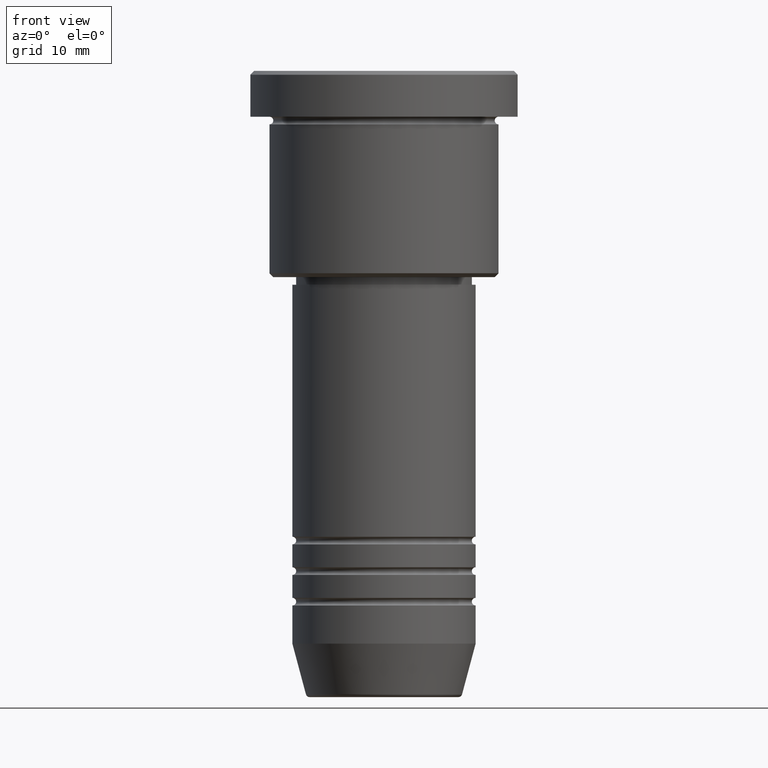
[diagram: clean part render]
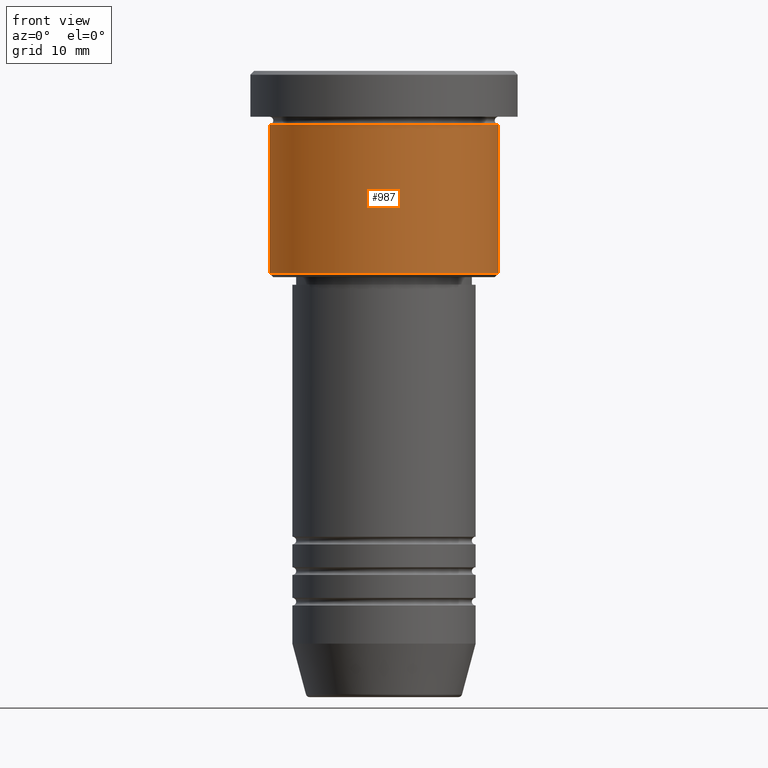
[diagram: same view with one face highlighted and labeled with its STEP entity id]
A machine part, front view. The second image highlights one B-rep face of the part: STEP entity #987.
In plain terms, the highlighted cylindrical surface (partial cylindrical patch) has radius 15 mm, axis along (-0, -0, 1).
Its self-contained STEP definition (entity closure, byte-faithful):
#23 = EDGE_CURVE ( 'NONE', #606, #525, #1027, .T. ) ;
#55 = DIRECTION ( 'NONE',  ( -0.000000000000000000, -0.000000000000000000, 1.000000000000000000 ) ) ;
#71 = DIRECTION ( 'NONE',  ( -0.000000000000000000, -0.000000000000000000, 1.000000000000000000 ) ) ;
#185 = ORIENTED_EDGE ( 'NONE', *, *, #760, .F. ) ;
#226 = VERTEX_POINT ( 'NONE', #449 ) ;
#252 = VECTOR ( 'NONE', #401, 1000.000000000000000 ) ;
#310 = CARTESIAN_POINT ( 'NONE',  ( -15.00000000000000000, 1.836970198721029589E-15, -26.50000000000002132 ) ) ;
#356 = ORIENTED_EDGE ( 'NONE', *, *, #1130, .T. ) ;
#363 = CIRCLE ( 'NONE', #841, 15.00000000000000000 ) ;
#389 = VECTOR ( 'NONE', #71, 1000.000000000000000 ) ;
#401 = DIRECTION ( 'NONE',  ( -0.000000000000000000, -0.000000000000000000, 1.000000000000000000 ) ) ;
#408 = CYLINDRICAL_SURFACE ( 'NONE', #569, 15.00000000000000000 ) ;
#439 = DIRECTION ( 'NONE',  ( -0.000000000000000000, -0.000000000000000000, 1.000000000000000000 ) ) ;
#443 = LINE ( 'NONE', #467, #389 ) ;
#449 = CARTESIAN_POINT ( 'NONE',  ( 15.00000000000000000, 0.000000000000000000, -26.50000000000002132 ) ) ;
#467 = CARTESIAN_POINT ( 'NONE',  ( 15.00000000000000000, 0.000000000000000000, 0.000000000000000000 ) ) ;
#497 = DIRECTION ( 'NONE',  ( 1.000000000000000000, 0.000000000000000000, 0.000000000000000000 ) ) ;
#525 = VERTEX_POINT ( 'NONE', #1054 ) ;
#569 = AXIS2_PLACEMENT_3D ( 'NONE', #1148, #55, #497 ) ;
#570 = DIRECTION ( 'NONE',  ( -0.000000000000000000, -0.000000000000000000, 1.000000000000000000 ) ) ;
#574 = CARTESIAN_POINT ( 'NONE',  ( -15.00000000000000000, 1.836970198721029589E-15, 0.000000000000000000 ) ) ;
#587 = DIRECTION ( 'NONE',  ( -1.000000000000000000, 0.000000000000000000, 0.000000000000000000 ) ) ;
#606 = VERTEX_POINT ( 'NONE', #723 ) ;
#633 = EDGE_LOOP ( 'NONE', ( #185, #771, #356, #1158 ) ) ;
#723 = CARTESIAN_POINT ( 'NONE',  ( -15.00000000000000000, 1.836970198721029589E-15, -6.999999999999995559 ) ) ;
#729 = EDGE_CURVE ( 'NONE', #782, #226, #363, .T. ) ;
#731 = LINE ( 'NONE', #574, #252 ) ;
#760 = EDGE_CURVE ( 'NONE', #782, #606, #731, .T. ) ;
#771 = ORIENTED_EDGE ( 'NONE', *, *, #729, .T. ) ;
#782 = VERTEX_POINT ( 'NONE', #310 ) ;
#829 = CARTESIAN_POINT ( 'NONE',  ( 0.000000000000000000, 0.000000000000000000, -26.50000000000002132 ) ) ;
#841 = AXIS2_PLACEMENT_3D ( 'NONE', #829, #570, #587 ) ;
#849 = FACE_OUTER_BOUND ( 'NONE', #633, .T. ) ;
#877 = DIRECTION ( 'NONE',  ( 1.000000000000000000, 0.000000000000000000, 0.000000000000000000 ) ) ;
#951 = CARTESIAN_POINT ( 'NONE',  ( 0.000000000000000000, 0.000000000000000000, -6.999999999999995559 ) ) ;
#987 = ADVANCED_FACE ( 'NONE', ( #849 ), #408, .T. ) ;
#1011 = AXIS2_PLACEMENT_3D ( 'NONE', #951, #439, #877 ) ;
#1027 = CIRCLE ( 'NONE', #1011, 15.00000000000000000 ) ;
#1054 = CARTESIAN_POINT ( 'NONE',  ( 15.00000000000000000, 0.000000000000000000, -6.999999999999995559 ) ) ;
#1130 = EDGE_CURVE ( 'NONE', #226, #525, #443, .T. ) ;
#1148 = CARTESIAN_POINT ( 'NONE',  ( 0.000000000000000000, 0.000000000000000000, 0.000000000000000000 ) ) ;
#1158 = ORIENTED_EDGE ( 'NONE', *, *, #23, .F. ) ;